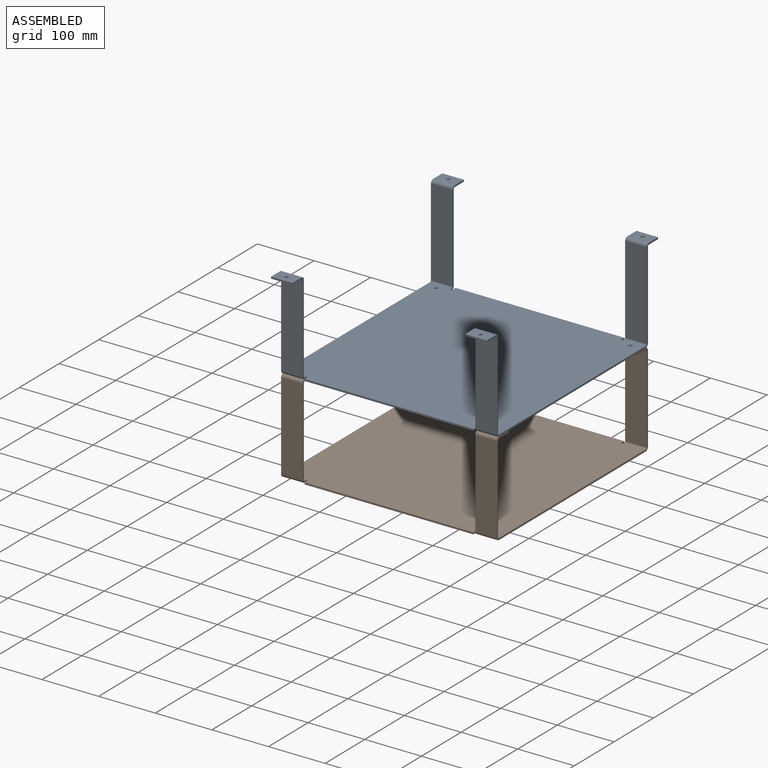
[diagram: assembled view]
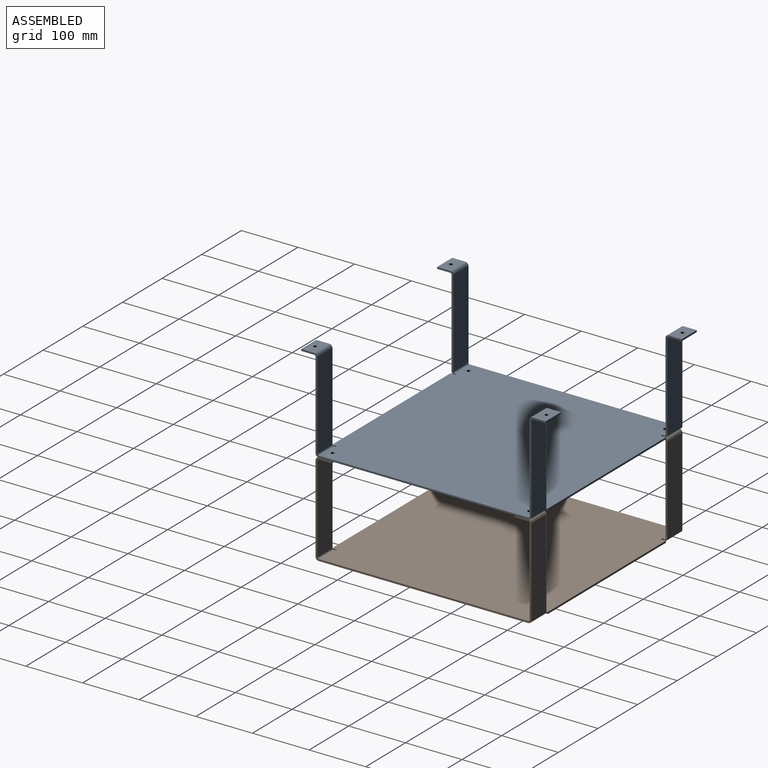
[diagram: assembled view, second angle]
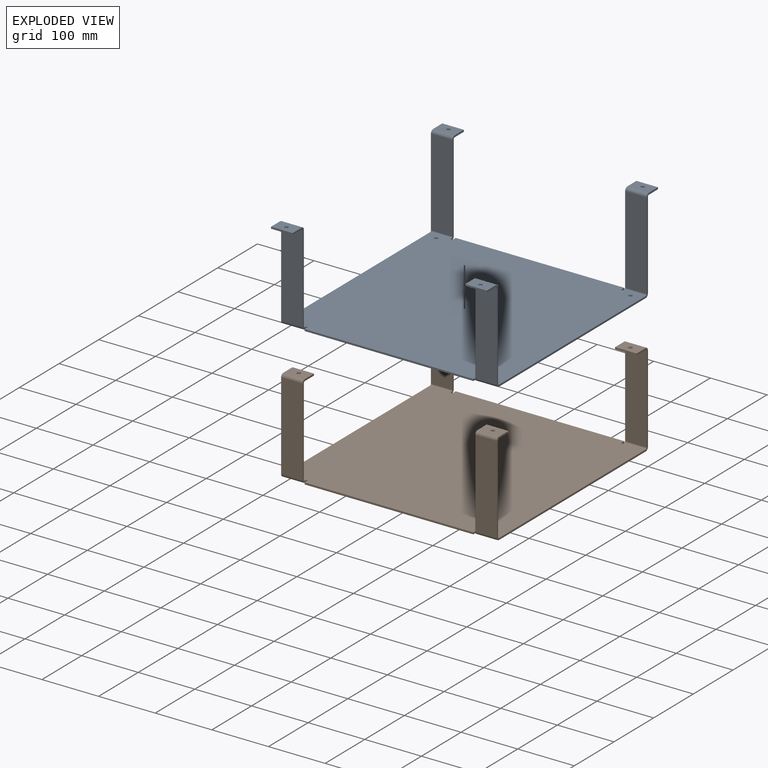
[diagram: exploded view]
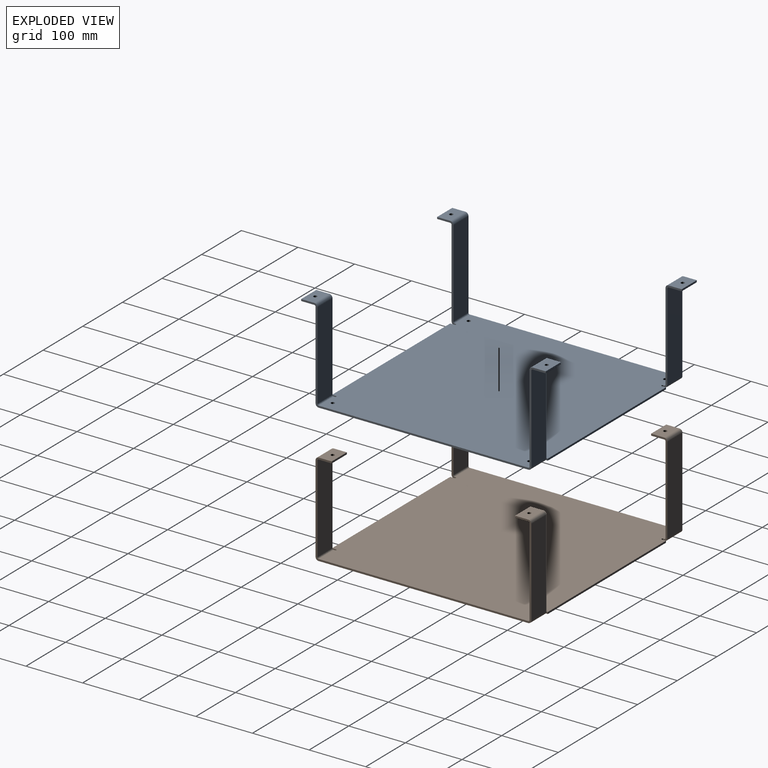
[diagram: exploded view, second angle]
ASSEMBLY  parts=2 mates=3
PART A: 94 faces, bbox 381x431.8x165.1 mm
  f0: plane 298.05x3.18mm, normal (0,-1,0), area 946.3mm2, adj f2,f3,f14,f18
  f1: plane 298.05x3.18mm, normal (0,1,0), area 946.3mm2, adj f2,f3,f12,f20
  f2: plane 381x381mm, normal (0,0,-1), area 144084.9mm2, adj f0,f1,f4,f5,f6,f7,f8,f9
  f3: plane 381x381mm, normal (0,0,1), area 144084.9mm2, adj f0,f1,f4,f5,f6,f7,f8,f9
  f4: plane 370.08x3.18mm, normal (1,0,0), area 1175mm2, adj f2,f3,f55,f73
  f5: plane 370.08x3.18mm, normal (-1,0,0), area 1175mm2, adj f2,f3,f37,f91
  f6: cylinder r=3.17mm len=6.35mm, axis (0,0,1), area 63.3mm2, adj f2,f3
  f7: cylinder r=3.28mm len=6.55mm, axis (0,0,1), area 65.4mm2, adj f2,f3
  f8: cylinder r=3.17mm len=6.35mm, axis (0,0,1), area 63.3mm2, adj f2,f3
  f9: cylinder r=3.17mm len=6.35mm, axis (0,0,1), area 63.3mm2, adj f2,f3
  f10: plane 3.18x1.74mm, normal (-1,0,0), area 5.5mm2, adj f2,f3,f11,f54
  f11: cylinder r=1.69mm len=3.37mm, axis (0,0,1), area 16.8mm2, adj f2,f3,f10,f12
  f12: plane 7.2x3.18mm, normal (1,0,0), area 22.9mm2, adj f1,f2,f3,f11
  f13: plane 3.18x1.74mm, normal (-1,0,0), area 5.5mm2, adj f2,f3,f15,f72
  f14: plane 7.2x3.18mm, normal (1,0,0), area 22.9mm2, adj f0,f2,f3,f15
  f15: cylinder r=1.69mm len=3.37mm, axis (0,0,1), area 16.8mm2, adj f2,f3,f13,f14
  f16: plane 3.18x1.74mm, normal (1,0,0), area 5.5mm2, adj f2,f3,f17,f90
  f17: cylinder r=1.69mm len=3.37mm, axis (0,0,1), area 16.8mm2, adj f2,f3,f16,f18
  f18: plane 7.2x3.18mm, normal (-1,0,0), area 22.9mm2, adj f0,f2,f3,f17
  f19: plane 3.18x1.74mm, normal (1,0,0), area 5.5mm2, adj f2,f3,f21,f36
  f20: plane 7.2x3.18mm, normal (-1,0,0), area 22.9mm2, adj f1,f2,f3,f21
  f21: cylinder r=1.69mm len=3.37mm, axis (0,0,1), area 16.8mm2, adj f2,f3,f19,f20
  f22: plane 154.18x3.18mm, normal (1,0,0), area 489.5mm2, adj f24,f25,f33,f36
  f23: plane 154.18x3.18mm, normal (-1,0,0), area 489.5mm2, adj f24,f25,f32,f37
  f24: plane 154.18x38.1mm, normal (0,1,0), area 5874.2mm2, adj f22,f23,f35,f38
  f25: plane 154.18x38.1mm, normal (0,-1,0), area 5874.2mm2, adj f22,f23,f34,f39
  f26: plane 38.1x3.18mm, normal (0,1,0), area 121mm2, adj f27,f29,f30,f31
  f27: plane 23.11x3.18mm, normal (1,0,0), area 73.4mm2, adj f26,f30,f31,f33
  f28: cylinder r=3.17mm len=6.35mm, axis (0,0,-1), area 63.3mm2, adj f30,f31
  f29: plane 23.11x3.18mm, normal (-1,0,0), area 73.4mm2, adj f26,f30,f31,f32
  f30: plane 38.1x23.11mm, normal (0,0,-1), area 849mm2, adj f26,f27,f28,f29,f35
  f31: plane 38.1x23.11mm, normal (0,0,1), area 849mm2, adj f26,f27,f28,f29,f34
  f32: plane 5.46x5.46mm, normal (-1,0,0), area 19.3mm2, adj f23,f29,f34,f35
  f33: plane 5.46x5.46mm, normal (1,0,0), area 19.3mm2, adj f22,f27,f34,f35
  f34: cylinder r=5.46mm len=38.1mm, axis (-1,0,0), area 326.8mm2, adj f25,f31,f32,f33
  f35: cylinder r=2.29mm len=38.1mm, axis (-1,0,0), area 136.8mm2, adj f24,f30,f32,f33
  f36: plane 5.46x5.46mm, normal (1,0,0), area 19.3mm2, adj f19,f22,f38,f39
  f37: plane 5.46x5.46mm, normal (-1,0,0), area 19.3mm2, adj f5,f23,f38,f39
  f38: cylinder r=5.46mm len=38.1mm, axis (1,0,0), area 326.8mm2, adj f2,f24,f36,f37
  f39: cylinder r=2.29mm len=38.1mm, axis (1,0,0), area 136.8mm2, adj f3,f25,f36,f37
  f40: plane 154.18x3.18mm, normal (1,0,0), area 489.5mm2, adj f42,f43,f51,f55
  f41: plane 154.18x3.18mm, normal (-1,0,0), area 489.5mm2, adj f42,f43,f50,f54
  f42: plane 154.18x38.1mm, normal (0,1,0), area 5874.2mm2, adj f40,f41,f53,f56
  f43: plane 154.18x38.1mm, normal (0,-1,0), area 5874.2mm2, adj f40,f41,f52,f57
  f44: plane 38.1x3.18mm, normal (0,1,0), area 121mm2, adj f45,f47,f48,f49
  f45: plane 23.11x3.18mm, normal (1,0,0), area 73.4mm2, adj f44,f48,f49,f51
  f46: cylinder r=3.17mm len=6.35mm, axis (0,0,-1), area 63.3mm2, adj f48,f49
  f47: plane 23.11x3.18mm, normal (-1,0,0), area 73.4mm2, adj f44,f48,f49,f50
  f48: plane 38.1x23.11mm, normal (0,0,-1), area 849mm2, adj f44,f45,f46,f47,f53
  f49: plane 38.1x23.11mm, normal (0,0,1), area 849mm2, adj f44,f45,f46,f47,f52
  f50: plane 5.46x5.46mm, normal (-1,0,0), area 19.3mm2, adj f41,f47,f52,f53
  f51: plane 5.46x5.46mm, normal (1,0,0), area 19.3mm2, adj f40,f45,f52,f53
  f52: cylinder r=5.46mm len=38.1mm, axis (-1,0,0), area 326.8mm2, adj f43,f49,f50,f51
  f53: cylinder r=2.29mm len=38.1mm, axis (-1,0,0), area 136.8mm2, adj f42,f48,f50,f51
  f54: plane 5.46x5.46mm, normal (-1,0,0), area 19.3mm2, adj f10,f41,f56,f57
  f55: plane 5.46x5.46mm, normal (1,0,0), area 19.3mm2, adj f4,f40,f56,f57
  f56: cylinder r=5.46mm len=38.1mm, axis (-1,0,0), area 326.8mm2, adj f2,f42,f54,f55
  f57: cylinder r=2.29mm len=38.1mm, axis (-1,0,0), area 136.8mm2, adj f3,f43,f54,f55
  f58: plane 154.18x3.18mm, normal (-1,0,0), area 489.5mm2, adj f60,f61,f69,f72
  f59: plane 154.18x3.18mm, normal (1,0,0), area 489.5mm2, adj f60,f61,f68,f73
  f60: plane 154.18x38.1mm, normal (0,-1,0), area 5874.2mm2, adj f58,f59,f71,f74
  f61: plane 154.18x38.1mm, normal (0,1,0), area 5874.2mm2, adj f58,f59,f70,f75
  f62: plane 38.1x3.18mm, normal (0,-1,0), area 121mm2, adj f63,f65,f66,f67
  f63: plane 23.11x3.18mm, normal (-1,0,0), area 73.4mm2, adj f62,f66,f67,f69
  f64: cylinder r=3.17mm len=6.35mm, axis (0,0,-1), area 63.3mm2, adj f66,f67
  f65: plane 23.11x3.18mm, normal (1,0,0), area 73.4mm2, adj f62,f66,f67,f68
  f66: plane 38.1x23.11mm, normal (0,0,-1), area 849mm2, adj f62,f63,f64,f65,f71
  f67: plane 38.1x23.11mm, normal (0,0,1), area 849mm2, adj f62,f63,f64,f65,f70
  f68: plane 5.46x5.46mm, normal (1,0,0), area 19.3mm2, adj f59,f65,f70,f71
  f69: plane 5.46x5.46mm, normal (-1,0,0), area 19.3mm2, adj f58,f63,f70,f71
  f70: cylinder r=5.46mm len=38.1mm, axis (1,0,0), area 326.8mm2, adj f61,f67,f68,f69
  f71: cylinder r=2.29mm len=38.1mm, axis (1,0,0), area 136.8mm2, adj f60,f66,f68,f69
  f72: plane 5.46x5.46mm, normal (-1,0,0), area 19.3mm2, adj f13,f58,f74,f75
  f73: plane 5.46x5.46mm, normal (1,0,0), area 19.3mm2, adj f4,f59,f74,f75
  f74: cylinder r=5.46mm len=38.1mm, axis (-1,0,0), area 326.8mm2, adj f2,f60,f72,f73
  f75: cylinder r=2.29mm len=38.1mm, axis (-1,0,0), area 136.8mm2, adj f3,f61,f72,f73
  f76: plane 154.18x3.18mm, normal (-1,0,0), area 489.5mm2, adj f78,f79,f87,f91
  f77: plane 154.18x3.18mm, normal (1,0,0), area 489.5mm2, adj f78,f79,f86,f90
  f78: plane 154.18x38.1mm, normal (0,-1,0), area 5874.2mm2, adj f76,f77,f89,f92
  f79: plane 154.18x38.1mm, normal (0,1,0), area 5874.2mm2, adj f76,f77,f88,f93
  f80: plane 38.1x3.18mm, normal (0,-1,0), area 121mm2, adj f81,f83,f84,f85
  f81: plane 23.11x3.18mm, normal (-1,0,0), area 73.4mm2, adj f80,f84,f85,f87
  f82: cylinder r=3.28mm len=6.55mm, axis (0,0,-1), area 65.4mm2, adj f84,f85
  f83: plane 23.11x3.18mm, normal (1,0,0), area 73.4mm2, adj f80,f84,f85,f86
  f84: plane 38.1x23.11mm, normal (0,0,-1), area 846.9mm2, adj f80,f81,f82,f83,f89
  f85: plane 38.1x23.11mm, normal (0,0,1), area 846.9mm2, adj f80,f81,f82,f83,f88
  f86: plane 5.46x5.46mm, normal (1,0,0), area 19.3mm2, adj f77,f83,f88,f89
  f87: plane 5.46x5.46mm, normal (-1,0,0), area 19.3mm2, adj f76,f81,f88,f89
  f88: cylinder r=5.46mm len=38.1mm, axis (1,0,0), area 326.8mm2, adj f79,f85,f86,f87
  f89: cylinder r=2.29mm len=38.1mm, axis (1,0,0), area 136.8mm2, adj f78,f84,f86,f87
  f90: plane 5.46x5.46mm, normal (1,0,0), area 19.3mm2, adj f16,f77,f92,f93
  f91: plane 5.46x5.46mm, normal (-1,0,0), area 19.3mm2, adj f5,f76,f92,f93
  f92: cylinder r=5.46mm len=38.1mm, axis (1,0,0), area 326.8mm2, adj f2,f78,f90,f91
  f93: cylinder r=2.29mm len=38.1mm, axis (1,0,0), area 136.8mm2, adj f3,f79,f90,f91
PART B: 90 faces, bbox 381x381x165.1 mm
  f0: plane 298.05x3.18mm, normal (0,-1,0), area 946.3mm2, adj f2,f3,f10,f14
  f1: plane 298.05x3.18mm, normal (0,1,0), area 946.3mm2, adj f2,f3,f8,f16
  f2: plane 381x381mm, normal (0,0,-1), area 144213.7mm2, adj f0,f1,f4,f5,f6,f7,f8,f9
  f3: plane 381x381mm, normal (0,0,1), area 144213.7mm2, adj f0,f1,f4,f5,f6,f7,f8,f9
  f4: plane 370.08x3.18mm, normal (1,0,0), area 1175mm2, adj f2,f3,f51,f69
  f5: plane 370.08x3.18mm, normal (-1,0,0), area 1175mm2, adj f2,f3,f33,f87
  f6: plane 3.18x1.74mm, normal (-1,0,0), area 5.5mm2, adj f2,f3,f7,f50
  f7: cylinder r=1.69mm len=3.37mm, axis (0,0,1), area 16.8mm2, adj f2,f3,f6,f8
  f8: plane 7.2x3.18mm, normal (1,0,0), area 22.9mm2, adj f1,f2,f3,f7
  f9: plane 3.18x1.74mm, normal (-1,0,0), area 5.5mm2, adj f2,f3,f11,f68
  f10: plane 7.2x3.18mm, normal (1,0,0), area 22.9mm2, adj f0,f2,f3,f11
  f11: cylinder r=1.69mm len=3.37mm, axis (0,0,1), area 16.8mm2, adj f2,f3,f9,f10
  f12: plane 3.18x1.74mm, normal (1,0,0), area 5.5mm2, adj f2,f3,f13,f86
  f13: cylinder r=1.69mm len=3.37mm, axis (0,0,1), area 16.8mm2, adj f2,f3,f12,f14
  f14: plane 7.2x3.18mm, normal (-1,0,0), area 22.9mm2, adj f0,f2,f3,f13
  f15: plane 3.18x1.74mm, normal (1,0,0), area 5.5mm2, adj f2,f3,f17,f32
  f16: plane 7.2x3.18mm, normal (-1,0,0), area 22.9mm2, adj f1,f2,f3,f17
  f17: cylinder r=1.69mm len=3.37mm, axis (0,0,1), area 16.8mm2, adj f2,f3,f15,f16
  f18: plane 154.18x3.18mm, normal (1,0,0), area 489.5mm2, adj f20,f21,f28,f32
  f19: plane 154.18x3.18mm, normal (-1,0,0), area 489.5mm2, adj f20,f21,f29,f33
  f20: plane 154.18x38.1mm, normal (0,1,0), area 5874.2mm2, adj f18,f19,f30,f34
  f21: plane 154.18x38.1mm, normal (0,-1,0), area 5874.2mm2, adj f18,f19,f31,f35
  f22: plane 38.1x3.18mm, normal (0,-1,0), area 121mm2, adj f23,f25,f26,f27
  f23: plane 23.11x3.18mm, normal (1,0,0), area 73.4mm2, adj f22,f26,f27,f28
  f24: cylinder r=3.17mm len=6.35mm, axis (0,0,1), area 63.3mm2, adj f26,f27
  f25: plane 23.11x3.18mm, normal (-1,0,0), area 73.4mm2, adj f22,f26,f27,f29
  f26: plane 38.1x23.11mm, normal (0,0,1), area 849mm2, adj f22,f23,f24,f25,f30
  f27: plane 38.1x23.11mm, normal (0,0,-1), area 849mm2, adj f22,f23,f24,f25,f31
  f28: plane 5.46x5.46mm, normal (1,0,0), area 19.3mm2, adj f18,f23,f30,f31
  f29: plane 5.46x5.46mm, normal (-1,0,0), area 19.3mm2, adj f19,f25,f30,f31
  f30: cylinder r=5.46mm len=38.1mm, axis (1,0,0), area 326.8mm2, adj f20,f26,f28,f29
  f31: cylinder r=2.29mm len=38.1mm, axis (1,0,0), area 136.8mm2, adj f21,f27,f28,f29
  f32: plane 5.46x5.46mm, normal (1,0,0), area 19.3mm2, adj f15,f18,f34,f35
  f33: plane 5.46x5.46mm, normal (-1,0,0), area 19.3mm2, adj f5,f19,f34,f35
  f34: cylinder r=5.46mm len=38.1mm, axis (1,0,0), area 326.8mm2, adj f2,f20,f32,f33
  f35: cylinder r=2.29mm len=38.1mm, axis (1,0,0), area 136.8mm2, adj f3,f21,f32,f33
  f36: plane 154.18x3.18mm, normal (1,0,0), area 489.5mm2, adj f38,f39,f46,f51
  f37: plane 154.18x3.18mm, normal (-1,0,0), area 489.5mm2, adj f38,f39,f47,f50
  f38: plane 154.18x38.1mm, normal (0,1,0), area 5874.2mm2, adj f36,f37,f48,f52
  f39: plane 154.18x38.1mm, normal (0,-1,0), area 5874.2mm2, adj f36,f37,f49,f53
  f40: plane 38.1x3.18mm, normal (0,-1,0), area 121mm2, adj f41,f43,f44,f45
  f41: plane 23.11x3.18mm, normal (1,0,0), area 73.4mm2, adj f40,f44,f45,f46
  f42: cylinder r=3.17mm len=6.35mm, axis (0,0,1), area 63.3mm2, adj f44,f45
  f43: plane 23.11x3.18mm, normal (-1,0,0), area 73.4mm2, adj f40,f44,f45,f47
  f44: plane 38.1x23.11mm, normal (0,0,1), area 849mm2, adj f40,f41,f42,f43,f48
  f45: plane 38.1x23.11mm, normal (0,0,-1), area 849mm2, adj f40,f41,f42,f43,f49
  f46: plane 5.46x5.46mm, normal (1,0,0), area 19.3mm2, adj f36,f41,f48,f49
  f47: plane 5.46x5.46mm, normal (-1,0,0), area 19.3mm2, adj f37,f43,f48,f49
  f48: cylinder r=5.46mm len=38.1mm, axis (1,0,0), area 326.8mm2, adj f38,f44,f46,f47
  f49: cylinder r=2.29mm len=38.1mm, axis (1,0,0), area 136.8mm2, adj f39,f45,f46,f47
  f50: plane 5.46x5.46mm, normal (-1,0,0), area 19.3mm2, adj f6,f37,f52,f53
  f51: plane 5.46x5.46mm, normal (1,0,0), area 19.3mm2, adj f4,f36,f52,f53
  f52: cylinder r=5.46mm len=38.1mm, axis (-1,0,0), area 326.8mm2, adj f2,f38,f50,f51
  f53: cylinder r=2.29mm len=38.1mm, axis (-1,0,0), area 136.8mm2, adj f3,f39,f50,f51
  f54: plane 154.18x3.18mm, normal (-1,0,0), area 489.5mm2, adj f56,f57,f64,f68
  f55: plane 154.18x3.18mm, normal (1,0,0), area 489.5mm2, adj f56,f57,f65,f69
  f56: plane 154.18x38.1mm, normal (0,-1,0), area 5874.2mm2, adj f54,f55,f66,f70
  f57: plane 154.18x38.1mm, normal (0,1,0), area 5874.2mm2, adj f54,f55,f67,f71
  f58: plane 38.1x3.18mm, normal (0,1,0), area 121mm2, adj f59,f61,f62,f63
  f59: plane 23.11x3.18mm, normal (-1,0,0), area 73.4mm2, adj f58,f62,f63,f64
  f60: cylinder r=3.17mm len=6.35mm, axis (0,0,1), area 63.3mm2, adj f62,f63
  f61: plane 23.11x3.18mm, normal (1,0,0), area 73.4mm2, adj f58,f62,f63,f65
  f62: plane 38.1x23.11mm, normal (0,0,1), area 849mm2, adj f58,f59,f60,f61,f66
  f63: plane 38.1x23.11mm, normal (0,0,-1), area 849mm2, adj f58,f59,f60,f61,f67
  f64: plane 5.46x5.46mm, normal (-1,0,0), area 19.3mm2, adj f54,f59,f66,f67
  f65: plane 5.46x5.46mm, normal (1,0,0), area 19.3mm2, adj f55,f61,f66,f67
  f66: cylinder r=5.46mm len=38.1mm, axis (-1,0,0), area 326.8mm2, adj f56,f62,f64,f65
  f67: cylinder r=2.29mm len=38.1mm, axis (-1,0,0), area 136.8mm2, adj f57,f63,f64,f65
  f68: plane 5.46x5.46mm, normal (-1,0,0), area 19.3mm2, adj f9,f54,f70,f71
  f69: plane 5.46x5.46mm, normal (1,0,0), area 19.3mm2, adj f4,f55,f70,f71
  f70: cylinder r=5.46mm len=38.1mm, axis (-1,0,0), area 326.8mm2, adj f2,f56,f68,f69
  f71: cylinder r=2.29mm len=38.1mm, axis (-1,0,0), area 136.8mm2, adj f3,f57,f68,f69
  f72: plane 154.18x3.18mm, normal (-1,0,0), area 489.5mm2, adj f74,f75,f82,f87
  f73: plane 154.18x3.18mm, normal (1,0,0), area 489.5mm2, adj f74,f75,f83,f86
  f74: plane 154.18x38.1mm, normal (0,-1,0), area 5874.2mm2, adj f72,f73,f84,f88
  f75: plane 154.18x38.1mm, normal (0,1,0), area 5874.2mm2, adj f72,f73,f85,f89
  f76: plane 38.1x3.18mm, normal (0,1,0), area 121mm2, adj f77,f79,f80,f81
  f77: plane 23.11x3.18mm, normal (-1,0,0), area 73.4mm2, adj f76,f80,f81,f82
  f78: cylinder r=3.28mm len=6.55mm, axis (0,0,1), area 65.4mm2, adj f80,f81
  f79: plane 23.11x3.18mm, normal (1,0,0), area 73.4mm2, adj f76,f80,f81,f83
  f80: plane 38.1x23.11mm, normal (0,0,1), area 846.9mm2, adj f76,f77,f78,f79,f84
  f81: plane 38.1x23.11mm, normal (0,0,-1), area 846.9mm2, adj f76,f77,f78,f79,f85
  f82: plane 5.46x5.46mm, normal (-1,0,0), area 19.3mm2, adj f72,f77,f84,f85
  f83: plane 5.46x5.46mm, normal (1,0,0), area 19.3mm2, adj f73,f79,f84,f85
  f84: cylinder r=5.46mm len=38.1mm, axis (-1,0,0), area 326.8mm2, adj f74,f80,f82,f83
  f85: cylinder r=2.29mm len=38.1mm, axis (-1,0,0), area 136.8mm2, adj f75,f81,f82,f83
  f86: plane 5.46x5.46mm, normal (1,0,0), area 19.3mm2, adj f12,f73,f88,f89
  f87: plane 5.46x5.46mm, normal (-1,0,0), area 19.3mm2, adj f5,f72,f88,f89
  f88: cylinder r=5.46mm len=38.1mm, axis (1,0,0), area 326.8mm2, adj f2,f74,f86,f87
  f89: cylinder r=2.29mm len=38.1mm, axis (1,0,0), area 136.8mm2, adj f3,f75,f86,f87
PLACE A t=(489.48,37.82,80.88)mm
PLACE B t=(489.48,37.82,-84.22)mm
MATE planar B.f20 <-> A.f24  axis (0,1,0) through (318.03,228.32,-1.67)mm
MATE planar A.f5 <-> B.f77  axis (-1,0,0) through (298.98,-147.22,84.05)mm
MATE fastened A.f7 <-> B.f78  axis (0,0,-1) through (318.03,-135.66,80.88)mm
